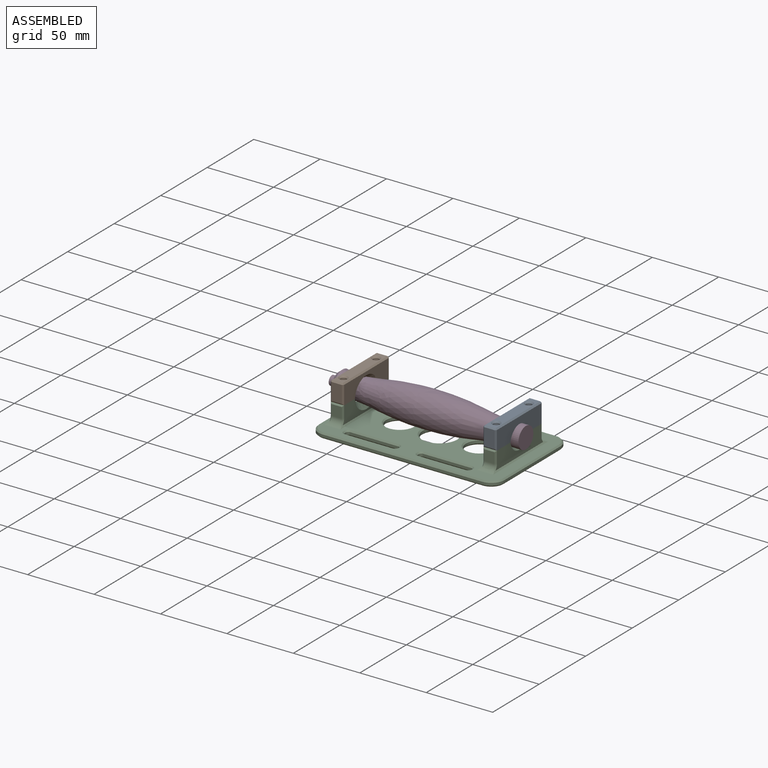
[diagram: assembled view]
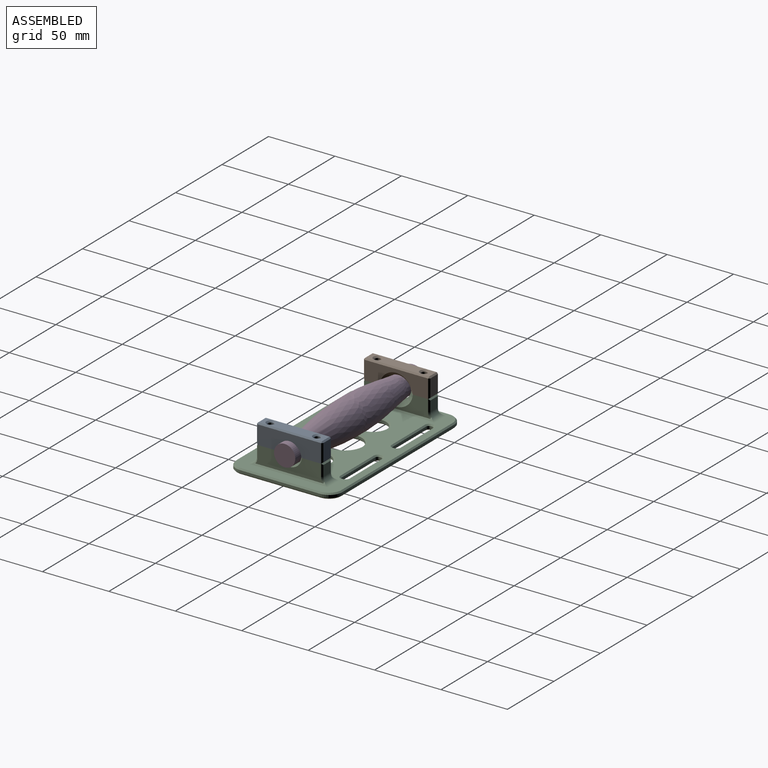
[diagram: assembled view, second angle]
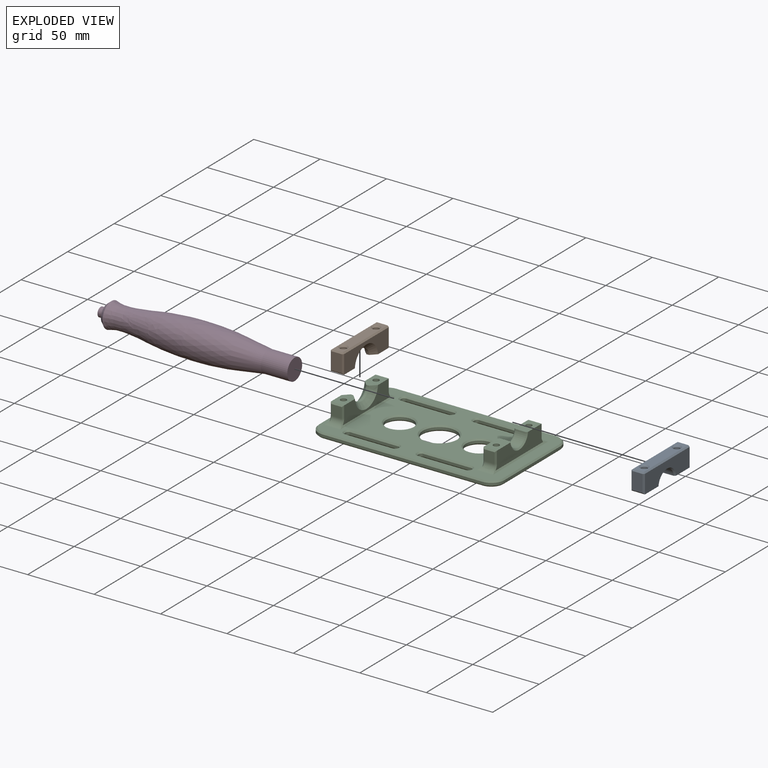
[diagram: exploded view]
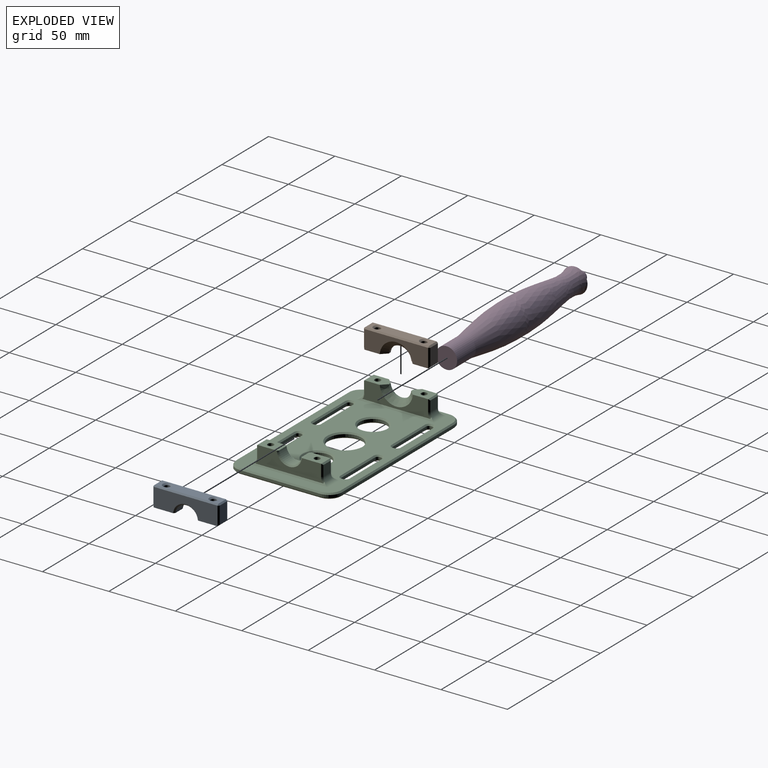
[diagram: exploded view, second angle]
ASSEMBLY  parts=4 mates=5
PART A: 28 faces, bbox 10x50x15.1 mm
  f0: plane 15.57x10.01mm, normal (0,0,1), area 138.7mm2, adj f2,f5,f6,f9,f10,f11,f12
  f1: plane 13x8mm, normal (0,1,0), area 104mm2, adj f19,f23,f24,f25
  f2: plane 48x14mm, normal (-1,0,0), area 549.2mm2, adj f0,f7,f11,f13,f18,f23
  f3: plane 13x8mm, normal (0,-1,0), area 104mm2, adj f12,f13,f14,f15
  f4: cylinder r=2.25mm len=14mm, axis (0,0,-1), area 197.9mm2, adj f7,f27
  f5: cylinder r=2.25mm len=14mm, axis (0,0,-1), area 197.9mm2, adj f0,f26
  f6: plane 48x14mm, normal (1,0,0), area 549.2mm2, adj f0,f7,f10,f15,f20,f24
  f7: plane 15.57x10.01mm, normal (0,0,1), area 138.7mm2, adj f2,f4,f6,f9,f10,f11,f25
  f8: plane 48x8mm, normal (0,0,-1), area 317.6mm2, adj f14,f18,f19,f20,f26,f27
  f9: cylinder r=8.5mm len=16.88mm, axis (1,0,0), area 197.6mm2, adj f0,f7,f10,f11
  f10: cone r=8.5mm half-angle=45deg, axis (1,0,0), area 37.1mm2, adj f0,f6,f7,f9
  f11: cone r=9.5mm half-angle=45deg, axis (-1,0,0), area 37.1mm2, adj f0,f2,f7,f9
  f12: plane 10x1mm, normal (0,-0.71,0.71), area 12.7mm2, adj f0,f3,f13,f15
  f13: plane 14x1mm, normal (-0.71,-0.71,0), area 19.1mm2, adj f2,f3,f12,f16
  f14: plane 8x1mm, normal (0,-0.71,-0.71), area 11.3mm2, adj f3,f8,f16,f17
  f15: plane 14x1mm, normal (0.71,-0.71,0), area 19.1mm2, adj f3,f6,f12,f17
  f16: plane 1x1mm, normal (-0.58,-0.58,-0.58), area 0.9mm2, adj f13,f14,f18
  f17: plane 1x1mm, normal (0.58,-0.58,-0.58), area 0.9mm2, adj f14,f15,f20
  f18: plane 48x1mm, normal (-0.71,0,-0.71), area 67.9mm2, adj f2,f8,f16,f21
  f19: plane 8x1mm, normal (0,0.71,-0.71), area 11.3mm2, adj f1,f8,f21,f22
  f20: plane 48x1mm, normal (0.71,0,-0.71), area 67.9mm2, adj f6,f8,f17,f22
  f21: plane 1x1mm, normal (-0.58,0.58,-0.58), area 0.9mm2, adj f18,f19,f23
  f22: plane 1x1mm, normal (0.58,0.58,-0.58), area 0.9mm2, adj f19,f20,f24
  f23: plane 14x1mm, normal (-0.71,0.71,0), area 19.1mm2, adj f1,f2,f21,f25
  f24: plane 14x1mm, normal (0.71,0.71,0), area 19.1mm2, adj f1,f6,f22,f25
  f25: plane 10x1mm, normal (0,0.71,0.71), area 12.7mm2, adj f1,f7,f23,f24
  f26: cone r=3.25mm half-angle=45deg, axis (0,0,-1), area 24.4mm2, adj f5,f8
  f27: cone r=3.25mm half-angle=45deg, axis (0,0,-1), area 24.4mm2, adj f4,f8
PART B: 28 faces, bbox 10.1x50.1x15.4 mm
  f0: plane 15.63x10.08mm, normal (0,0,1), area 123.6mm2, adj f2,f5,f6,f9,f10,f11,f25
  f1: plane 13x8mm, normal (0,1,0), area 104mm2, adj f12,f13,f14,f15
  f2: plane 48x14mm, normal (-1,0,0), area 451.5mm2, adj f0,f7,f10,f13,f18,f23
  f3: plane 13x8mm, normal (0,-1,0), area 104mm2, adj f20,f23,f24,f25
  f4: cylinder r=2.25mm len=14mm, axis (0,0,-1), area 197.9mm2, adj f7,f27
  f5: cylinder r=2.25mm len=14mm, axis (0,0,-1), area 197.9mm2, adj f0,f26
  f6: plane 48x14mm, normal (1,0,0), area 451.5mm2, adj f0,f7,f11,f14,f19,f24
  f7: plane 15.63x10.08mm, normal (0,0,1), area 123.6mm2, adj f2,f4,f6,f9,f10,f11,f12
  f8: plane 48x8mm, normal (0,0,-1), area 317.6mm2, adj f15,f18,f19,f20,f26,f27
  f9: cylinder r=8.5mm len=16.88mm, axis (1,0,0), area 49.4mm2, adj f0,f7,f10,f11
  f10: cone r=12.5mm half-angle=45deg, axis (-1,0,0), area 175mm2, adj f0,f2,f7,f9
  f11: cone r=8.5mm half-angle=45deg, axis (1,0,0), area 175mm2, adj f0,f6,f7,f9
  f12: plane 10x1mm, normal (0,0.71,0.71), area 12.7mm2, adj f1,f7,f13,f14
  f13: plane 14x1mm, normal (-0.71,0.71,0), area 19.1mm2, adj f1,f2,f12,f16
  f14: plane 14x1mm, normal (0.71,0.71,0), area 19.1mm2, adj f1,f6,f12,f17
  f15: plane 8x1mm, normal (0,0.71,-0.71), area 11.3mm2, adj f1,f8,f16,f17
  f16: plane 1x1mm, normal (-0.58,0.58,-0.58), area 0.9mm2, adj f13,f15,f18
  f17: plane 1x1mm, normal (0.58,0.58,-0.58), area 0.9mm2, adj f14,f15,f19
  f18: plane 48x1mm, normal (-0.71,0,-0.71), area 67.9mm2, adj f2,f8,f16,f21
  f19: plane 48x1mm, normal (0.71,0,-0.71), area 67.9mm2, adj f6,f8,f17,f22
  f20: plane 8x1mm, normal (0,-0.71,-0.71), area 11.3mm2, adj f3,f8,f21,f22
  f21: plane 1x1mm, normal (-0.58,-0.58,-0.58), area 0.9mm2, adj f18,f20,f23
  f22: plane 1x1mm, normal (0.58,-0.58,-0.58), area 0.9mm2, adj f19,f20,f24
  f23: plane 14x1mm, normal (-0.71,-0.71,0), area 19.1mm2, adj f2,f3,f21,f25
  f24: plane 14x1mm, normal (0.71,-0.71,0), area 19.1mm2, adj f3,f6,f22,f25
  f25: plane 10x1mm, normal (0,-0.71,0.71), area 12.7mm2, adj f0,f3,f23,f24
  f26: cone r=3.25mm half-angle=45deg, axis (0,0,-1), area 24.4mm2, adj f5,f8
  f27: cone r=3.25mm half-angle=45deg, axis (0,0,-1), area 24.4mm2, adj f4,f8
PART C: 233 faces, bbox 140.1x80.1x18.4 mm
  f0: plane 138x78mm, normal (0,0,-1), area 7935mm2, adj f144,f145,f146,f147,f148,f149,f150,f151
  f1: cylinder r=2.25mm len=14.5mm, axis (0,0,1), area 205mm2, adj f60,f84
  f2: cylinder r=2.25mm len=14.5mm, axis (0,0,1), area 205mm2, adj f55,f77
  f3: cylinder r=2.25mm len=14.5mm, axis (0,0,1), area 205mm2, adj f5,f70
  f4: cylinder r=2.25mm len=14.5mm, axis (0,0,1), area 205mm2, adj f6,f63
  f5: plane 15.63x10.08mm, normal (0,0,1), area 123.6mm2, adj f3,f52,f54,f62,f211,f212,f230
  f6: plane 15.57x10.01mm, normal (0,0,1), area 138.7mm2, adj f4,f57,f59,f61,f95,f96,f215
  f7: plane 60x2mm, normal (1,0,0), area 120mm2, adj f8,f49,f138,f205
  f8: cylinder r=10mm len=10mm, axis (0,0,-1), area 31.4mm2, adj f7,f9,f136,f203
  f9: plane 120x2mm, normal (0,1,0), area 240mm2, adj f8,f10,f137,f204
  f10: cylinder r=10mm len=10mm, axis (0,0,-1), area 31.4mm2, adj f9,f11,f139,f206
  f11: plane 60x2mm, normal (-1,0,0), area 120mm2, adj f10,f12,f141,f208
  f12: cylinder r=10mm len=10mm, axis (0,0,-1), area 31.4mm2, adj f11,f13,f143,f210
  f13: plane 120x2mm, normal (0,-1,0), area 240mm2, adj f12,f49,f142,f209
  f14: cylinder r=2mm len=2mm, axis (0,0,-1), area 6.3mm2, adj f15,f42,f128,f195
  f15: plane 2x1mm, normal (-1,0,0), area 2mm2, adj f14,f16,f130,f197
  f16: cylinder r=2mm len=2mm, axis (0,0,-1), area 6.3mm2, adj f15,f17,f132,f199
  f17: plane 36x2mm, normal (0,1,0), area 72mm2, adj f16,f18,f134,f201
  f18: cylinder r=2mm len=2mm, axis (0,0,-1), area 6.3mm2, adj f17,f19,f135,f202
  f19: plane 2x1mm, normal (1,0,0), area 2mm2, adj f18,f20,f133,f200
  f20: cylinder r=2mm len=2mm, axis (0,0,-1), area 6.3mm2, adj f19,f42,f131,f198
  f21: cylinder r=2mm len=2mm, axis (0,0,-1), area 6.3mm2, adj f22,f43,f120,f187
  f22: plane 36x2mm, normal (0,1,0), area 72mm2, adj f21,f23,f122,f189
  f23: cylinder r=2mm len=2mm, axis (0,0,-1), area 6.3mm2, adj f22,f24,f124,f191
  f24: plane 2x1mm, normal (1,0,0), area 2mm2, adj f23,f25,f126,f193
  f25: cylinder r=2mm len=2mm, axis (0,0,-1), area 6.3mm2, adj f24,f26,f127,f194
  f26: plane 36x2mm, normal (0,-1,0), area 72mm2, adj f25,f27,f125,f192
  f27: cylinder r=2mm len=2mm, axis (0,0,-1), area 6.3mm2, adj f26,f43,f123,f190
  f28: cylinder r=2mm len=2mm, axis (0,0,-1), area 6.3mm2, adj f29,f47,f109,f176
  f29: plane 2x1mm, normal (-1,0,0), area 2mm2, adj f28,f30,f107,f174
  f30: cylinder r=2mm len=2mm, axis (0,0,-1), area 6.3mm2, adj f29,f31,f105,f172
  f31: plane 36x2mm, normal (0,1,0), area 72mm2, adj f30,f32,f104,f171
  f32: cylinder r=2mm len=2mm, axis (0,0,-1), area 6.3mm2, adj f31,f33,f106,f173
  f33: plane 2x1mm, normal (1,0,0), area 2mm2, adj f32,f34,f108,f175
  f34: cylinder r=2mm len=2mm, axis (0,0,-1), area 6.3mm2, adj f33,f47,f110,f177
  f35: plane 2x1mm, normal (-1,0,0), area 2mm2, adj f36,f48,f115,f182
  f36: cylinder r=2mm len=2mm, axis (0,0,-1), area 6.3mm2, adj f35,f37,f113,f180
  f37: plane 36x2mm, normal (0,1,0), area 72mm2, adj f36,f38,f112,f179
  f38: cylinder r=2mm len=2mm, axis (0,0,-1), area 6.3mm2, adj f37,f39,f114,f181
  f39: plane 2x1mm, normal (1,0,0), area 2mm2, adj f38,f40,f116,f183
  f40: cylinder r=2mm len=2mm, axis (0,0,-1), area 6.3mm2, adj f39,f41,f118,f185
  f41: plane 36x2mm, normal (0,-1,0), area 72mm2, adj f40,f48,f119,f186
  f42: plane 36x2mm, normal (0,-1,0), area 72mm2, adj f14,f20,f129,f196
  f43: plane 2x1mm, normal (-1,0,0), area 2mm2, adj f21,f27,f121,f188
  f44: cylinder r=12.5mm len=25mm, axis (0,0,-1), area 157.1mm2, adj f103,f170
  f45: cylinder r=10mm len=20mm, axis (0,0,-1), area 125.7mm2, adj f102,f169
  f46: cylinder r=10mm len=20mm, axis (0,0,-1), area 125.7mm2, adj f101,f168
  f47: plane 36x2mm, normal (0,-1,0), area 72mm2, adj f28,f34,f111,f178
  f48: cylinder r=2mm len=2mm, axis (0,0,-1), area 6.3mm2, adj f35,f41,f117,f184
  f49: cylinder r=10mm len=10mm, axis (0,0,-1), area 31.4mm2, adj f7,f13,f140,f207
  f50: plane 138x78mm, normal (0,0,1), area 6776.6mm2, adj f91,f92,f93,f94,f97,f98,f99,f100
  f51: plane 8x8mm, normal (0,1,0), area 64mm2, adj f94,f224,f225,f226
  f52: plane 51.06x13mm, normal (-1,0,0), area 407.4mm2, adj f5,f55,f100,f211,f223,f224,f228,f229
  f53: plane 8x8mm, normal (0,-1,0), area 64mm2, adj f93,f229,f230,f231
  f54: plane 51.06x13mm, normal (1,0,0), area 407.4mm2, adj f5,f55,f99,f212,f226,f227,f231,f232
  f55: plane 15.63x10.08mm, normal (0,0,1), area 123.6mm2, adj f2,f52,f54,f62,f211,f212,f225
  f56: plane 8x8mm, normal (0,1,0), area 64mm2, adj f92,f219,f220,f221
  f57: plane 51.06x13mm, normal (-1,0,0), area 505mm2, adj f6,f60,f95,f98,f213,f214,f218,f219
  f58: plane 8x8mm, normal (0,-1,0), area 64mm2, adj f91,f214,f215,f216
  f59: plane 51.06x13mm, normal (1,0,0), area 505mm2, adj f6,f60,f96,f97,f216,f217,f221,f222
  f60: plane 15.57x10.01mm, normal (0,0,1), area 138.7mm2, adj f1,f57,f59,f61,f95,f96,f220
  f61: cylinder r=8.5mm len=16.88mm, axis (1,0,0), area 197.6mm2, adj f6,f60,f95,f96
  f62: cylinder r=8.5mm len=16.88mm, axis (1,0,0), area 49.4mm2, adj f5,f55,f211,f212
  f63: plane 8.1x7.02mm, normal (0,0,-1), area 26.7mm2, adj f4,f64,f65,f66,f67,f68,f69
  f64: plane 3.51x2.5mm, normal (-0.5,-0.87,0), area 10.1mm2, adj f63,f65,f69,f154
  f65: plane 4.05x2.5mm, normal (-1,0,0), area 10.1mm2, adj f63,f64,f66,f155
  f66: plane 3.51x2.5mm, normal (-0.5,0.87,0), area 10.1mm2, adj f63,f65,f67,f153
  f67: plane 3.51x2.5mm, normal (0.5,0.87,0), area 10.1mm2, adj f63,f66,f68,f151
  f68: plane 4.05x2.5mm, normal (1,0,0), area 10.1mm2, adj f63,f67,f69,f150
  f69: plane 3.51x2.5mm, normal (0.5,-0.87,0), area 10.1mm2, adj f63,f64,f68,f152
  f70: plane 8.1x7.02mm, normal (0,0,-1), area 26.7mm2, adj f3,f71,f72,f73,f74,f75,f76
  f71: plane 3.51x2.5mm, normal (-0.5,-0.87,0), area 10.1mm2, adj f70,f72,f76,f166
  f72: plane 4.05x2.5mm, normal (-1,0,0), area 10.1mm2, adj f70,f71,f73,f167
  f73: plane 3.51x2.5mm, normal (-0.5,0.87,0), area 10.1mm2, adj f70,f72,f74,f165
  f74: plane 3.51x2.5mm, normal (0.5,0.87,0), area 10.1mm2, adj f70,f73,f75,f163
  f75: plane 4.05x2.5mm, normal (1,0,0), area 10.1mm2, adj f70,f74,f76,f162
  f76: plane 3.51x2.5mm, normal (0.5,-0.87,0), area 10.1mm2, adj f70,f71,f75,f164
  f77: plane 8.1x7.02mm, normal (0,0,-1), area 26.7mm2, adj f2,f78,f79,f80,f81,f82,f83
  f78: plane 3.51x2.5mm, normal (-0.5,-0.87,0), area 10.1mm2, adj f77,f79,f83,f160
  f79: plane 4.05x2.5mm, normal (-1,0,0), area 10.1mm2, adj f77,f78,f80,f161
  f80: plane 3.51x2.5mm, normal (-0.5,0.87,0), area 10.1mm2, adj f77,f79,f81,f159
  f81: plane 3.51x2.5mm, normal (0.5,0.87,0), area 10.1mm2, adj f77,f80,f82,f157
  f82: plane 4.05x2.5mm, normal (1,0,0), area 10.1mm2, adj f77,f81,f83,f156
  f83: plane 3.51x2.5mm, normal (0.5,-0.87,0), area 10.1mm2, adj f77,f78,f82,f158
  f84: plane 8.1x7.02mm, normal (0,0,-1), area 26.7mm2, adj f1,f85,f86,f87,f88,f89,f90
  f85: plane 3.51x2.5mm, normal (-0.5,-0.87,0), area 10.1mm2, adj f84,f86,f90,f148
  f86: plane 4.05x2.5mm, normal (-1,0,0), area 10.1mm2, adj f84,f85,f87,f149
  f87: plane 3.51x2.5mm, normal (-0.5,0.87,0), area 10.1mm2, adj f84,f86,f88,f147
  f88: plane 3.51x2.5mm, normal (0.5,0.87,0), area 10.1mm2, adj f84,f87,f89,f145
  f89: plane 4.05x2.5mm, normal (1,0,0), area 10.1mm2, adj f84,f88,f90,f144
  f90: plane 3.51x2.5mm, normal (0.5,-0.87,0), area 10.1mm2, adj f84,f85,f89,f146
  f91: cylinder r=5mm len=12mm, axis (1,0,0), area 75mm2, adj f50,f58,f97,f98,f213,f217
  f92: cylinder r=5mm len=12mm, axis (-1,0,0), area 75mm2, adj f50,f56,f97,f98,f218,f222
  f93: cylinder r=5mm len=12mm, axis (1,0,0), area 75mm2, adj f50,f53,f99,f100,f228,f232
  f94: cylinder r=5mm len=12mm, axis (-1,0,0), area 75mm2, adj f50,f51,f99,f100,f223,f227
  f95: cone r=9.5mm half-angle=45deg, axis (-1,0,0), area 37.1mm2, adj f6,f57,f60,f61
  f96: cone r=8.5mm half-angle=45deg, axis (1,0,0), area 37.1mm2, adj f6,f59,f60,f61
  f97: plane 60.03x2.03mm, normal (0.71,0,0.71), area 81mm2, adj f50,f59,f91,f92,f217,f222
  f98: plane 60.03x2.03mm, normal (-0.71,0,0.71), area 81mm2, adj f50,f57,f91,f92,f213,f218
  f99: plane 60.03x2.03mm, normal (0.71,0,0.71), area 81mm2, adj f50,f54,f93,f94,f227,f232
  f100: plane 60.03x2.03mm, normal (-0.71,0,0.71), area 81mm2, adj f50,f52,f93,f94,f223,f228
  f101: cone r=10mm half-angle=45deg, axis (0,0,1), area 93.3mm2, adj f46,f50
  f102: cone r=10mm half-angle=45deg, axis (0,0,1), area 93.3mm2, adj f45,f50
  f103: cone r=12.5mm half-angle=45deg, axis (0,0,1), area 115.5mm2, adj f44,f50
  f104: plane 36x1mm, normal (0,0.71,0.71), area 50.9mm2, adj f31,f50,f105,f106
  f105: cone r=3mm half-angle=45deg, axis (0,0,1), area 5.6mm2, adj f30,f50,f104,f107
  f106: cone r=3mm half-angle=45deg, axis (0,0,1), area 5.6mm2, adj f32,f50,f104,f108
  f107: plane 1x1mm, normal (-0.71,0,0.71), area 1.4mm2, adj f29,f50,f105,f109
  f108: plane 1x1mm, normal (0.71,0,0.71), area 1.4mm2, adj f33,f50,f106,f110
  f109: cone r=3mm half-angle=45deg, axis (0,0,1), area 5.6mm2, adj f28,f50,f107,f111
  f110: cone r=3mm half-angle=45deg, axis (0,0,1), area 5.6mm2, adj f34,f50,f108,f111
  f111: plane 36x1mm, normal (0,-0.71,0.71), area 50.9mm2, adj f47,f50,f109,f110
  f112: plane 36x1mm, normal (0,0.71,0.71), area 50.9mm2, adj f37,f50,f113,f114
  f113: cone r=3mm half-angle=45deg, axis (0,0,1), area 5.6mm2, adj f36,f50,f112,f115
  f114: cone r=3mm half-angle=45deg, axis (0,0,1), area 5.6mm2, adj f38,f50,f112,f116
  f115: plane 1x1mm, normal (-0.71,0,0.71), area 1.4mm2, adj f35,f50,f113,f117
  f116: plane 1x1mm, normal (0.71,0,0.71), area 1.4mm2, adj f39,f50,f114,f118
  f117: cone r=3mm half-angle=45deg, axis (0,0,1), area 5.6mm2, adj f48,f50,f115,f119
  f118: cone r=3mm half-angle=45deg, axis (0,0,1), area 5.6mm2, adj f40,f50,f116,f119
  f119: plane 36x1mm, normal (0,-0.71,0.71), area 50.9mm2, adj f41,f50,f117,f118
  f120: cone r=2mm half-angle=45deg, axis (0,0,1), area 5.6mm2, adj f21,f50,f121,f122
  f121: plane 1x1mm, normal (-0.71,0,0.71), area 1.4mm2, adj f43,f50,f120,f123
  f122: plane 36x1mm, normal (0,0.71,0.71), area 50.9mm2, adj f22,f50,f120,f124
  f123: cone r=2mm half-angle=45deg, axis (0,0,1), area 5.6mm2, adj f27,f50,f121,f125
  f124: cone r=2mm half-angle=45deg, axis (0,0,1), area 5.6mm2, adj f23,f50,f122,f126
  f125: plane 36x1mm, normal (0,-0.71,0.71), area 50.9mm2, adj f26,f50,f123,f127
  f126: plane 1x1mm, normal (0.71,0,0.71), area 1.4mm2, adj f24,f50,f124,f127
  f127: cone r=2mm half-angle=45deg, axis (0,0,1), area 5.6mm2, adj f25,f50,f125,f126
  f128: cone r=2mm half-angle=45deg, axis (0,0,1), area 5.6mm2, adj f14,f50,f129,f130
  f129: plane 36x1mm, normal (0,-0.71,0.71), area 50.9mm2, adj f42,f50,f128,f131
  f130: plane 1x1mm, normal (-0.71,0,0.71), area 1.4mm2, adj f15,f50,f128,f132
  f131: cone r=2mm half-angle=45deg, axis (0,0,1), area 5.6mm2, adj f20,f50,f129,f133
  f132: cone r=2mm half-angle=45deg, axis (0,0,1), area 5.6mm2, adj f16,f50,f130,f134
  f133: plane 1x1mm, normal (0.71,0,0.71), area 1.4mm2, adj f19,f50,f131,f135
  f134: plane 36x1mm, normal (0,0.71,0.71), area 50.9mm2, adj f17,f50,f132,f135
  f135: cone r=2mm half-angle=45deg, axis (0,0,1), area 5.6mm2, adj f18,f50,f133,f134
  f136: cone r=9mm half-angle=45deg, axis (0,0,-1), area 21.1mm2, adj f8,f50,f137,f138
  f137: plane 120x1mm, normal (0,0.71,0.71), area 169.7mm2, adj f9,f50,f136,f139
  f138: plane 60x1mm, normal (0.71,0,0.71), area 84.9mm2, adj f7,f50,f136,f140
  f139: cone r=9mm half-angle=45deg, axis (0,0,-1), area 21.1mm2, adj f10,f50,f137,f141
  f140: cone r=9mm half-angle=45deg, axis (0,0,-1), area 21.1mm2, adj f49,f50,f138,f142
  f141: plane 60x1mm, normal (-0.71,0,0.71), area 84.9mm2, adj f11,f50,f139,f143
  f142: plane 120x1mm, normal (0,-0.71,0.71), area 169.7mm2, adj f13,f50,f140,f143
  f143: cone r=9mm half-angle=45deg, axis (0,0,-1), area 21.1mm2, adj f12,f50,f141,f142
  f144: plane 5.2x1mm, normal (0.71,0,-0.71), area 6.5mm2, adj f0,f89,f145,f146
  f145: plane 4.51x3.18mm, normal (0.35,0.61,-0.71), area 6.5mm2, adj f0,f88,f144,f147
  f146: plane 4.51x3.18mm, normal (0.35,-0.61,-0.71), area 6.5mm2, adj f0,f90,f144,f148
  f147: plane 4.51x3.18mm, normal (-0.35,0.61,-0.71), area 6.5mm2, adj f0,f87,f145,f149
  f148: plane 4.51x3.18mm, normal (-0.35,-0.61,-0.71), area 6.5mm2, adj f0,f85,f146,f149
  f149: plane 5.2x1mm, normal (-0.71,0,-0.71), area 6.5mm2, adj f0,f86,f147,f148
  f150: plane 5.2x1mm, normal (0.71,0,-0.71), area 6.5mm2, adj f0,f68,f151,f152
  f151: plane 4.51x3.18mm, normal (0.35,0.61,-0.71), area 6.5mm2, adj f0,f67,f150,f153
  f152: plane 4.51x3.18mm, normal (0.35,-0.61,-0.71), area 6.5mm2, adj f0,f69,f150,f154
  f153: plane 4.51x3.18mm, normal (-0.35,0.61,-0.71), area 6.5mm2, adj f0,f66,f151,f155
  f154: plane 4.51x3.18mm, normal (-0.35,-0.61,-0.71), area 6.5mm2, adj f0,f64,f152,f155
  f155: plane 5.2x1mm, normal (-0.71,0,-0.71), area 6.5mm2, adj f0,f65,f153,f154
  f156: plane 5.2x1mm, normal (0.71,0,-0.71), area 6.5mm2, adj f0,f82,f157,f158
  f157: plane 4.51x3.18mm, normal (0.35,0.61,-0.71), area 6.5mm2, adj f0,f81,f156,f159
  f158: plane 4.51x3.18mm, normal (0.35,-0.61,-0.71), area 6.5mm2, adj f0,f83,f156,f160
  f159: plane 4.51x3.18mm, normal (-0.35,0.61,-0.71), area 6.5mm2, adj f0,f80,f157,f161
  f160: plane 4.51x3.18mm, normal (-0.35,-0.61,-0.71), area 6.5mm2, adj f0,f78,f158,f161
  f161: plane 5.2x1mm, normal (-0.71,0,-0.71), area 6.5mm2, adj f0,f79,f159,f160
  f162: plane 5.2x1mm, normal (0.71,0,-0.71), area 6.5mm2, adj f0,f75,f163,f164
  f163: plane 4.51x3.18mm, normal (0.35,0.61,-0.71), area 6.5mm2, adj f0,f74,f162,f165
  f164: plane 4.51x3.18mm, normal (0.35,-0.61,-0.71), area 6.5mm2, adj f0,f76,f162,f166
  f165: plane 4.51x3.18mm, normal (-0.35,0.61,-0.71), area 6.5mm2, adj f0,f73,f163,f167
  f166: plane 4.51x3.18mm, normal (-0.35,-0.61,-0.71), area 6.5mm2, adj f0,f71,f164,f167
  f167: plane 5.2x1mm, normal (-0.71,0,-0.71), area 6.5mm2, adj f0,f72,f165,f166
  f168: cone r=11mm half-angle=45deg, axis (0,0,-1), area 93.3mm2, adj f0,f46
  f169: cone r=11mm half-angle=45deg, axis (0,0,-1), area 93.3mm2, adj f0,f45
  f170: cone r=13.5mm half-angle=45deg, axis (0,0,-1), area 115.5mm2, adj f0,f44
  f171: plane 36x1mm, normal (0,0.71,-0.71), area 50.9mm2, adj f0,f31,f172,f173
  f172: cone r=2mm half-angle=45deg, axis (0,0,-1), area 5.6mm2, adj f0,f30,f171,f174
  f173: cone r=2mm half-angle=45deg, axis (0,0,-1), area 5.6mm2, adj f0,f32,f171,f175
  f174: plane 1x1mm, normal (-0.71,0,-0.71), area 1.4mm2, adj f0,f29,f172,f176
  f175: plane 1x1mm, normal (0.71,0,-0.71), area 1.4mm2, adj f0,f33,f173,f177
  f176: cone r=2mm half-angle=45deg, axis (0,0,-1), area 5.6mm2, adj f0,f28,f174,f178
  f177: cone r=2mm half-angle=45deg, axis (0,0,-1), area 5.6mm2, adj f0,f34,f175,f178
  f178: plane 36x1mm, normal (0,-0.71,-0.71), area 50.9mm2, adj f0,f47,f176,f177
  f179: plane 36x1mm, normal (0,0.71,-0.71), area 50.9mm2, adj f0,f37,f180,f181
  f180: cone r=2mm half-angle=45deg, axis (0,0,-1), area 5.6mm2, adj f0,f36,f179,f182
  f181: cone r=2mm half-angle=45deg, axis (0,0,-1), area 5.6mm2, adj f0,f38,f179,f183
  f182: plane 1x1mm, normal (-0.71,0,-0.71), area 1.4mm2, adj f0,f35,f180,f184
  f183: plane 1x1mm, normal (0.71,0,-0.71), area 1.4mm2, adj f0,f39,f181,f185
  f184: cone r=2mm half-angle=45deg, axis (0,0,-1), area 5.6mm2, adj f0,f48,f182,f186
  f185: cone r=2mm half-angle=45deg, axis (0,0,-1), area 5.6mm2, adj f0,f40,f183,f186
  f186: plane 36x1mm, normal (0,-0.71,-0.71), area 50.9mm2, adj f0,f41,f184,f185
  f187: cone r=3mm half-angle=45deg, axis (0,0,-1), area 5.6mm2, adj f0,f21,f188,f189
  f188: plane 1x1mm, normal (-0.71,0,-0.71), area 1.4mm2, adj f0,f43,f187,f190
  f189: plane 36x1mm, normal (0,0.71,-0.71), area 50.9mm2, adj f0,f22,f187,f191
  f190: cone r=3mm half-angle=45deg, axis (0,0,-1), area 5.6mm2, adj f0,f27,f188,f192
  f191: cone r=3mm half-angle=45deg, axis (0,0,-1), area 5.6mm2, adj f0,f23,f189,f193
  f192: plane 36x1mm, normal (0,-0.71,-0.71), area 50.9mm2, adj f0,f26,f190,f194
  f193: plane 1x1mm, normal (0.71,0,-0.71), area 1.4mm2, adj f0,f24,f191,f194
  f194: cone r=3mm half-angle=45deg, axis (0,0,-1), area 5.6mm2, adj f0,f25,f192,f193
  f195: cone r=3mm half-angle=45deg, axis (0,0,-1), area 5.6mm2, adj f0,f14,f196,f197
  f196: plane 36x1mm, normal (0,-0.71,-0.71), area 50.9mm2, adj f0,f42,f195,f198
  f197: plane 1x1mm, normal (-0.71,0,-0.71), area 1.4mm2, adj f0,f15,f195,f199
  f198: cone r=3mm half-angle=45deg, axis (0,0,-1), area 5.6mm2, adj f0,f20,f196,f200
  f199: cone r=3mm half-angle=45deg, axis (0,0,-1), area 5.6mm2, adj f0,f16,f197,f201
  f200: plane 1x1mm, normal (0.71,0,-0.71), area 1.4mm2, adj f0,f19,f198,f202
  f201: plane 36x1mm, normal (0,0.71,-0.71), area 50.9mm2, adj f0,f17,f199,f202
  f202: cone r=3mm half-angle=45deg, axis (0,0,-1), area 5.6mm2, adj f0,f18,f200,f201
  f203: cone r=10mm half-angle=45deg, axis (0,0,1), area 21.1mm2, adj f0,f8,f204,f205
  f204: plane 120x1mm, normal (0,0.71,-0.71), area 169.7mm2, adj f0,f9,f203,f206
  f205: plane 60x1mm, normal (0.71,0,-0.71), area 84.9mm2, adj f0,f7,f203,f207
  f206: cone r=10mm half-angle=45deg, axis (0,0,1), area 21.1mm2, adj f0,f10,f204,f208
  f207: cone r=10mm half-angle=45deg, axis (0,0,1), area 21.1mm2, adj f0,f49,f205,f209
  f208: plane 60x1mm, normal (-0.71,0,-0.71), area 84.9mm2, adj f0,f11,f206,f210
  f209: plane 120x1mm, normal (0,-0.71,-0.71), area 169.7mm2, adj f0,f13,f207,f210
  f210: cone r=10mm half-angle=45deg, axis (0,0,1), area 21.1mm2, adj f0,f12,f208,f209
  f211: cone r=12.5mm half-angle=45deg, axis (-1,0,0), area 175mm2, adj f5,f52,f55,f62
  f212: cone r=8.5mm half-angle=45deg, axis (1,0,0), area 175mm2, adj f5,f54,f55,f62
  f213: cone r=6mm half-angle=45deg, axis (-1,0,0), area 5.4mm2, adj f57,f91,f98,f214
  f214: plane 9x1mm, normal (-0.71,-0.71,0), area 12mm2, adj f57,f58,f213,f215
  f215: plane 10x1mm, normal (0,-0.71,0.71), area 12.7mm2, adj f6,f58,f214,f216
  f216: plane 9x1mm, normal (0.71,-0.71,0), area 12mm2, adj f58,f59,f215,f217
  f217: cone r=6mm half-angle=45deg, axis (1,0,0), area 5.4mm2, adj f59,f91,f97,f216
  f218: cone r=6mm half-angle=45deg, axis (-1,0,0), area 5.4mm2, adj f57,f92,f98,f219
  f219: plane 9x1mm, normal (-0.71,0.71,0), area 12mm2, adj f56,f57,f218,f220
  f220: plane 10x1mm, normal (0,0.71,0.71), area 12.7mm2, adj f56,f60,f219,f221
  f221: plane 9x1mm, normal (0.71,0.71,0), area 12mm2, adj f56,f59,f220,f222
  f222: cone r=6mm half-angle=45deg, axis (1,0,0), area 5.4mm2, adj f59,f92,f97,f221
  f223: cone r=6mm half-angle=45deg, axis (-1,0,0), area 5.4mm2, adj f52,f94,f100,f224
  f224: plane 9x1mm, normal (-0.71,0.71,0), area 12mm2, adj f51,f52,f223,f225
  f225: plane 10x1mm, normal (0,0.71,0.71), area 12.7mm2, adj f51,f55,f224,f226
  f226: plane 9x1mm, normal (0.71,0.71,0), area 12mm2, adj f51,f54,f225,f227
  f227: cone r=6mm half-angle=45deg, axis (1,0,0), area 5.4mm2, adj f54,f94,f99,f226
  f228: cone r=6mm half-angle=45deg, axis (-1,0,0), area 5.4mm2, adj f52,f93,f100,f229
  f229: plane 9x1mm, normal (-0.71,-0.71,0), area 12mm2, adj f52,f53,f228,f230
  f230: plane 10x1mm, normal (0,-0.71,0.71), area 12.7mm2, adj f5,f53,f229,f231
  f231: plane 9x1mm, normal (0.71,-0.71,0), area 12mm2, adj f53,f54,f230,f232
  f232: cone r=6mm half-angle=45deg, axis (1,0,0), area 5.4mm2, adj f54,f93,f99,f231
PART D: 7 faces, bbox 146x26x26 mm
  f0: revolved ~118x26mm, area 8101.3mm2, adj f1,f6
  f1: cylinder r=8mm len=20mm, axis (1,0,0), area 1005.3mm2, adj f0,f2
  f2: plane 16x16mm, normal (-1,0,0), area 201.1mm2, adj f1
  f3: plane 7x7mm, normal (1,0,0), area 38.5mm2, adj f4
  f4: cylinder r=3.5mm len=8mm, axis (1,0,0), area 175.9mm2, adj f3,f5
  f5: cone r=7mm half-angle=49.4deg, axis (1,0,0), area 152.1mm2, adj f4,f6
  f6: cone r=9.5mm half-angle=39.8deg, axis (-1,0,0), area 202.4mm2, adj f0,f5
PLACE A rot(axis=(1,0,0),180deg) t=(53.67,1.84,27.92)mm
PLACE B rot(axis=(1,0,0),180deg) t=(-61.33,1.84,27.92)mm
PLACE C t=(-1.33,1.84,-5.08)mm
PLACE D rot(axis=(0,0,-1),180deg) t=(-8.2,1.84,13.92)mm
MATE cylindrical D.f1 <-> C.f61  axis (-1,0,0) through (53.67,1.84,13.92)mm
MATE planar B.f7 <-> C.f5  axis (0,0,-1) through (-61.33,-15.05,12.92)mm
MATE planar B.f3 <-> C.f51  axis (0,1,0) through (-61.33,26.84,20.42)mm
MATE planar A.f6 <-> C.f59  axis (1,0,0) through (58.67,-7.61,12.92)mm
MATE planar A.f3 <-> C.f56  axis (0,1,0) through (49.67,26.84,20.42)mm
